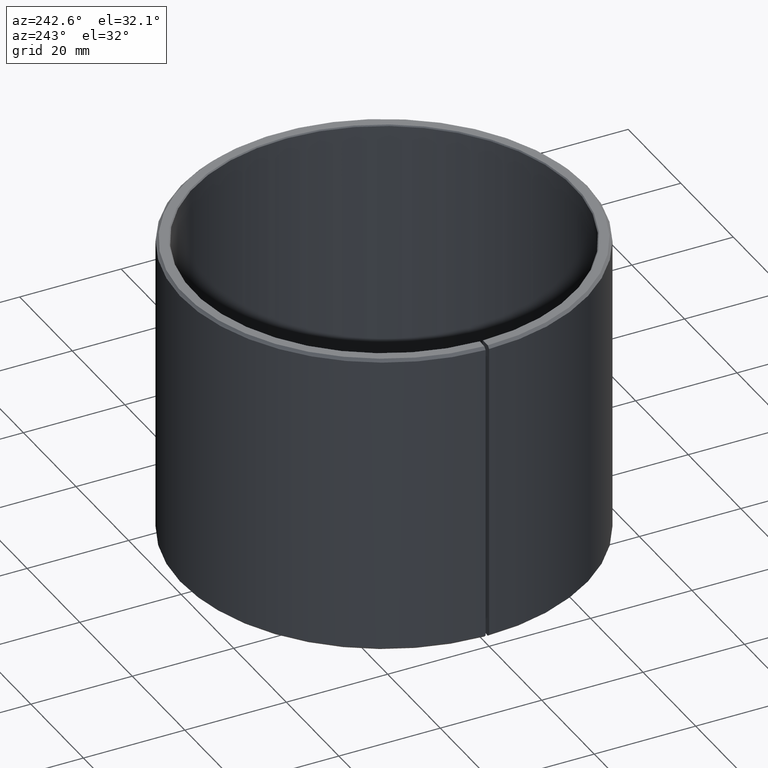
[diagram: clean part render]
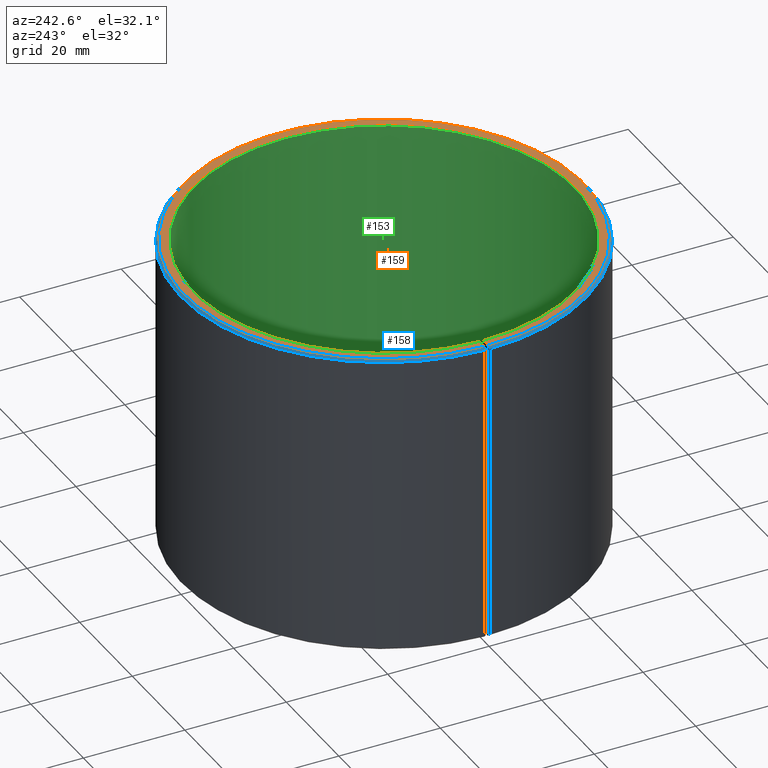
[diagram: same view with three faces highlighted in distinct colors, each labeled with its STEP entity id]
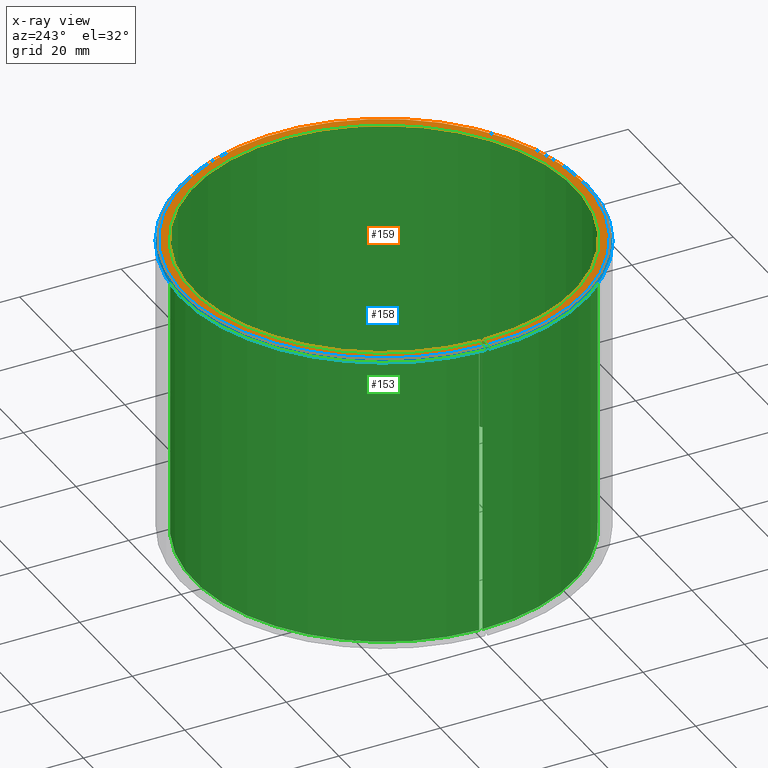
[diagram: x-ray of the same camera — body ghosted, the three highlighted faces saturated]
A machine part, auxiliary view with three faces highlighted in distinct colors.
The next image is the same camera in x-ray (body ghosted, the three faces saturated) — at least one of them is partly hidden behind the body in this view.
Their STEP definitions:

[orange] entity #159 — the highlighted planar face has unit normal (0, -0, 1).
#159=ADVANCED_FACE('',(#177),#178,.T.);
#177=FACE_OUTER_BOUND('',#198,.T.);
#178=PLANE('',#199);
#198=EDGE_LOOP('',(#248,#249,#250,#251));
#199=AXIS2_PLACEMENT_3D('',#252,#253,#254);
#248=ORIENTED_EDGE('',*,*,#303,.T.);
#249=ORIENTED_EDGE('',*,*,#304,.T.);
#250=ORIENTED_EDGE('',*,*,#305,.F.);
#251=ORIENTED_EDGE('',*,*,#300,.F.);
#252=CARTESIAN_POINT('',(0.000689370054272694,0.0394939839586775,0.06));
#253=DIRECTION('',(-6.12323399573677E-017,0.0,1.0));
#254=DIRECTION('',(1.0,0.0,6.12323399573677E-017));
#300=EDGE_CURVE('',#336,#337,#338,.T.);
#303=EDGE_CURVE('',#336,#341,#342,.T.);
#304=EDGE_CURVE('',#341,#343,#344,.T.);
#305=EDGE_CURVE('',#337,#343,#345,.T.);
#336=VERTEX_POINT('',#386);
#337=VERTEX_POINT('',#387);
#338=CIRCLE('',#388,0.0395);
#341=VERTEX_POINT('',#393);
#342=LINE('',#394,#395);
#343=VERTEX_POINT('',#396);
#344=CIRCLE('',#397,0.0377);
#345=LINE('',#398,#399);
#386=CARTESIAN_POINT('',(0.000689370054272694,0.0394939839586775,0.06));
#387=CARTESIAN_POINT('',(-6.93889390390723E-018,0.0395,0.06));
#388=AXIS2_PLACEMENT_3D('',#432,#433,#434);
#393=CARTESIAN_POINT('',(0.000657955722685583,0.037694258107396,0.06));
#394=CARTESIAN_POINT('',(0.000689370054272694,0.0394939839586775,0.06));
#395=VECTOR('',#437,1.0);
#396=CARTESIAN_POINT('',(-6.93889390390723E-018,0.0377,0.06));
#397=AXIS2_PLACEMENT_3D('',#438,#439,#440);
#398=CARTESIAN_POINT('',(-6.93889390390723E-018,0.0395,0.06));
#399=VECTOR('',#441,1.0);
#432=CARTESIAN_POINT('',(-6.93889390390723E-018,-2.60208521396521E-018,0.06));
#433=DIRECTION('',(6.12323399573677E-017,0.0,-1.0));
#434=DIRECTION('',(-1.0,0.0,-6.12323399573677E-017));
#437=DIRECTION('',(-0.0174524064372836,-0.999847695156391,-1.0686516840419E-018));
#438=CARTESIAN_POINT('',(-6.93889390390723E-018,-2.60208521396521E-018,0.06));
#439=DIRECTION('',(6.12323399573677E-017,0.0,-1.0));
#440=DIRECTION('',(-1.0,0.0,-6.12323399573677E-017));
#441=DIRECTION('',(0.0,-1.0,0.0));

[blue] entity #158 — the highlighted conical surface has half-angle 45 deg.
#158=ADVANCED_FACE('',(#175),#176,.T.);
#175=FACE_OUTER_BOUND('',#196,.T.);
#176=CONICAL_SURFACE('',#197,0.04,0.785398163397448);
#196=EDGE_LOOP('',(#241,#242,#243,#244));
#197=AXIS2_PLACEMENT_3D('',#245,#246,#247);
#241=ORIENTED_EDGE('',*,*,#300,.T.);
#242=ORIENTED_EDGE('',*,*,#301,.F.);
#243=ORIENTED_EDGE('',*,*,#297,.F.);
#244=ORIENTED_EDGE('',*,*,#302,.T.);
#245=CARTESIAN_POINT('',(-6.93889390390723E-018,-2.60208521396521E-018,0.0595));
#246=DIRECTION('',(6.12323399573677E-017,-0.0,-1.0));
#247=DIRECTION('',(-1.0,0.0,-6.12323399573677E-017));
#297=EDGE_CURVE('',#331,#332,#333,.T.);
#300=EDGE_CURVE('',#336,#337,#338,.T.);
#301=EDGE_CURVE('',#332,#337,#339,.T.);
#302=EDGE_CURVE('',#331,#336,#340,.T.);
#331=VERTEX_POINT('',#379);
#332=VERTEX_POINT('',#380);
#333=CIRCLE('',#381,0.04);
#336=VERTEX_POINT('',#386);
#337=VERTEX_POINT('',#387);
#338=CIRCLE('',#388,0.0395);
#339=LINE('',#389,#390);
#340=LINE('',#391,#392);
#379=CARTESIAN_POINT('',(0.000698096257491336,0.0399939078062556,0.0595));
#380=CARTESIAN_POINT('',(-6.93889390390723E-018,0.04,0.0595));
#381=AXIS2_PLACEMENT_3D('',#427,#428,#429);
#386=CARTESIAN_POINT('',(0.000689370054272694,0.0394939839586775,0.06));
#387=CARTESIAN_POINT('',(-6.93889390390723E-018,0.0395,0.06));
#388=AXIS2_PLACEMENT_3D('',#432,#433,#434);
#389=CARTESIAN_POINT('',(-6.93889390390723E-018,0.04,0.0595));
#390=VECTOR('',#435,1.0);
#391=CARTESIAN_POINT('',(0.000698096257491336,0.0399939078062556,0.0595));
#392=VECTOR('',#436,1.0);
#427=CARTESIAN_POINT('',(-6.93889390390723E-018,-2.60208521396521E-018,0.0595));
#428=DIRECTION('',(6.12323399573677E-017,0.0,-1.0));
#429=DIRECTION('',(-1.0,0.0,-6.12323399573677E-017));
#432=CARTESIAN_POINT('',(-6.93889390390723E-018,-2.60208521396521E-018,0.06));
#433=DIRECTION('',(6.12323399573677E-017,0.0,-1.0));
#434=DIRECTION('',(-1.0,0.0,-6.12323399573677E-017));
#435=DIRECTION('',(0.0,-0.707106781186548,0.707106781186548));
#436=DIRECTION('',(-0.012340714939827,-0.706999085398824,0.707106781186548));

[green] entity #153 — the highlighted cylindrical surface (partial cylindrical patch) has radius 37.5 mm, axis along (-0, 0, -1).
#153=ADVANCED_FACE('',(#165),#166,.F.);
#165=FACE_OUTER_BOUND('',#186,.T.);
#166=CYLINDRICAL_SURFACE('',#187,0.0375);
#186=EDGE_LOOP('',(#206,#207,#208,#209));
#187=AXIS2_PLACEMENT_3D('',#210,#211,#212);
#206=ORIENTED_EDGE('',*,*,#284,.T.);
#207=ORIENTED_EDGE('',*,*,#285,.F.);
#208=ORIENTED_EDGE('',*,*,#286,.F.);
#209=ORIENTED_EDGE('',*,*,#287,.T.);
#210=CARTESIAN_POINT('',(-3.46944695195362E-018,-2.60208521396521E-018,-5.42101086242752E-020));
#211=DIRECTION('',(6.12323399573677E-017,0.0,-1.0));
#212=DIRECTION('',(-1.0,0.0,-6.12323399573677E-017));
#284=EDGE_CURVE('',#308,#309,#310,.T.);
#285=EDGE_CURVE('',#311,#309,#312,.T.);
#286=EDGE_CURVE('',#313,#311,#314,.T.);
#287=EDGE_CURVE('',#313,#308,#315,.T.);
#308=VERTEX_POINT('',#348);
#309=VERTEX_POINT('',#349);
#310=CIRCLE('',#350,0.0375);
#311=VERTEX_POINT('',#351);
#312=LINE('',#352,#353);
#313=VERTEX_POINT('',#354);
#314=CIRCLE('',#355,0.0375);
#315=LINE('',#356,#357);
#348=CARTESIAN_POINT('',(0.000654465241398131,0.0374942885683647,0.0002));
#349=CARTESIAN_POINT('',(-3.46944695195362E-018,0.0375,0.0002));
#350=AXIS2_PLACEMENT_3D('',#404,#405,#406);
#351=CARTESIAN_POINT('',(-6.93889390390723E-018,0.0375,0.0598));
#352=CARTESIAN_POINT('',(-6.93889390390723E-018,0.0375,0.0598));
#353=VECTOR('',#407,1.0);
#354=CARTESIAN_POINT('',(0.000654465241398126,0.0374942885683646,0.0598));
#355=AXIS2_PLACEMENT_3D('',#408,#409,#410);
#356=CARTESIAN_POINT('',(0.000654465241398126,0.0374942885683646,0.0598));
#357=VECTOR('',#411,1.0);
#404=CARTESIAN_POINT('',(-3.46944695195362E-018,-2.60208521396521E-018,0.0002));
#405=DIRECTION('',(6.12323399573677E-017,0.0,-1.0));
#406=DIRECTION('',(-1.0,0.0,-6.12323399573677E-017));
#407=DIRECTION('',(5.82121971804298E-017,4.65697577443438E-016,-1.0));
#408=CARTESIAN_POINT('',(-6.93889390390723E-018,-2.60208521396521E-018,0.0598));
#409=DIRECTION('',(6.12323399573677E-017,0.0,-1.0));
#410=DIRECTION('',(-1.0,0.0,-6.12323399573677E-017));
#411=DIRECTION('',(6.63402005612043E-017,4.65679358205979E-016,-1.0));